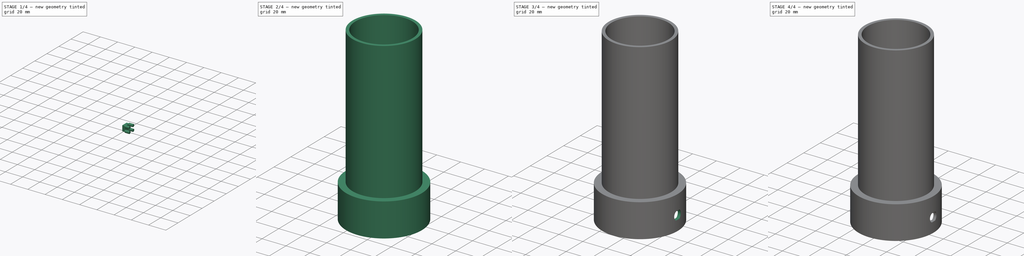
[diagram: build sequence overview — one tinted view per stage of 4, left to right]
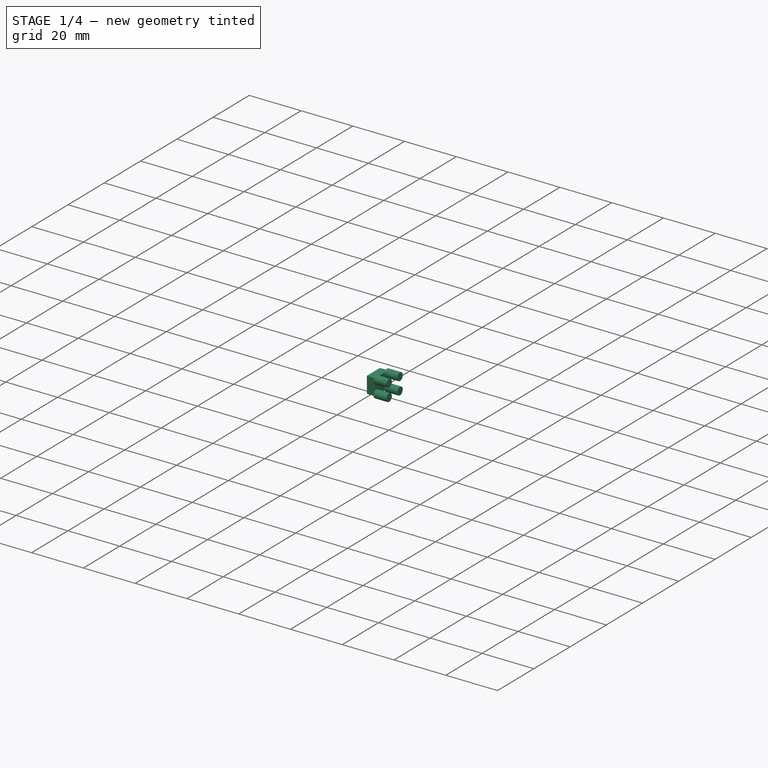
[diagram: stage 1 of 4 — iso view after this stage's code; geometry added in this stage tinted green]
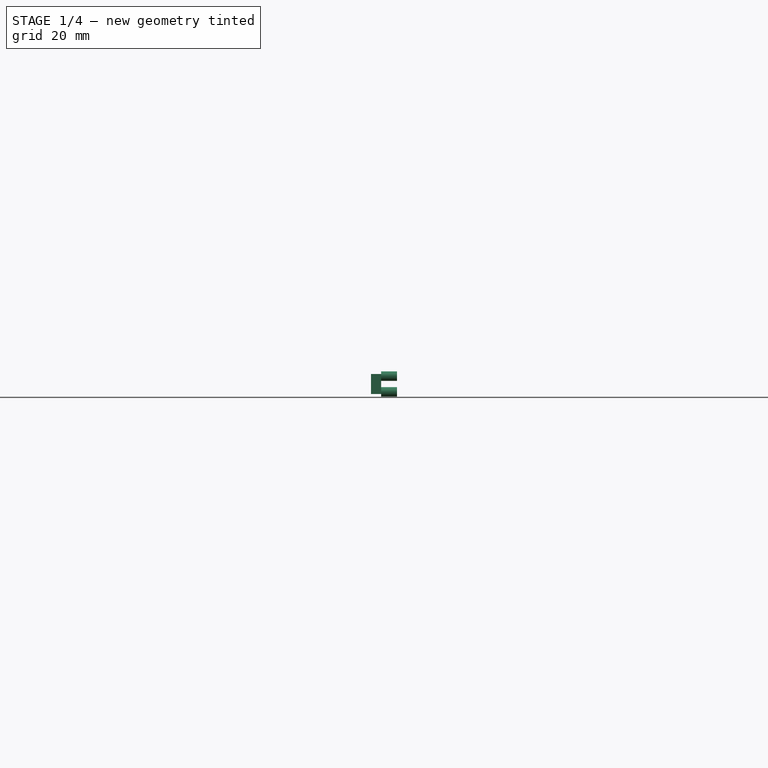
[diagram: stage 1 of 4 — front view after this stage's code; geometry added in this stage tinted green]
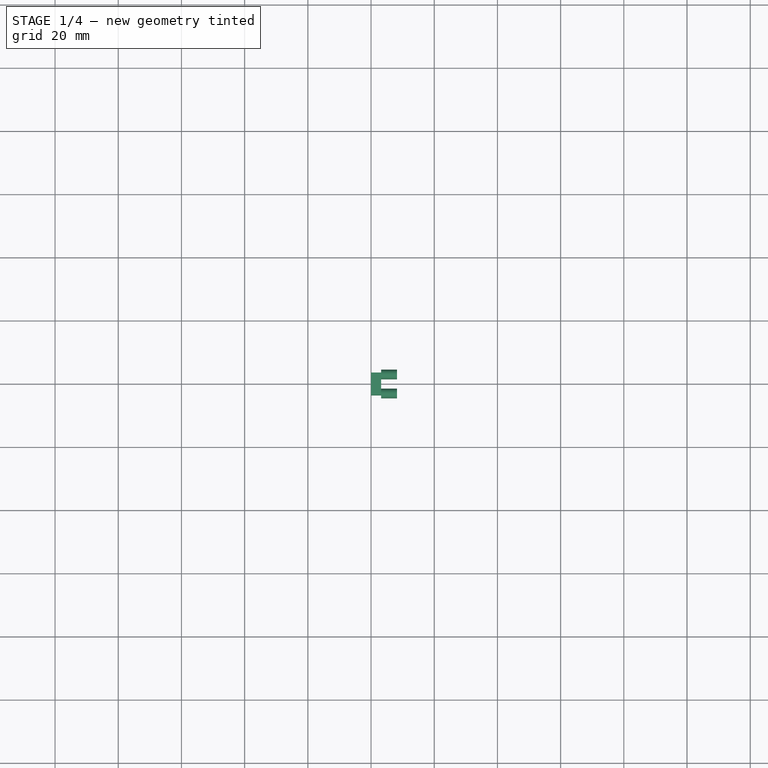
[diagram: stage 1 of 4 — top view after this stage's code; geometry added in this stage tinted green]
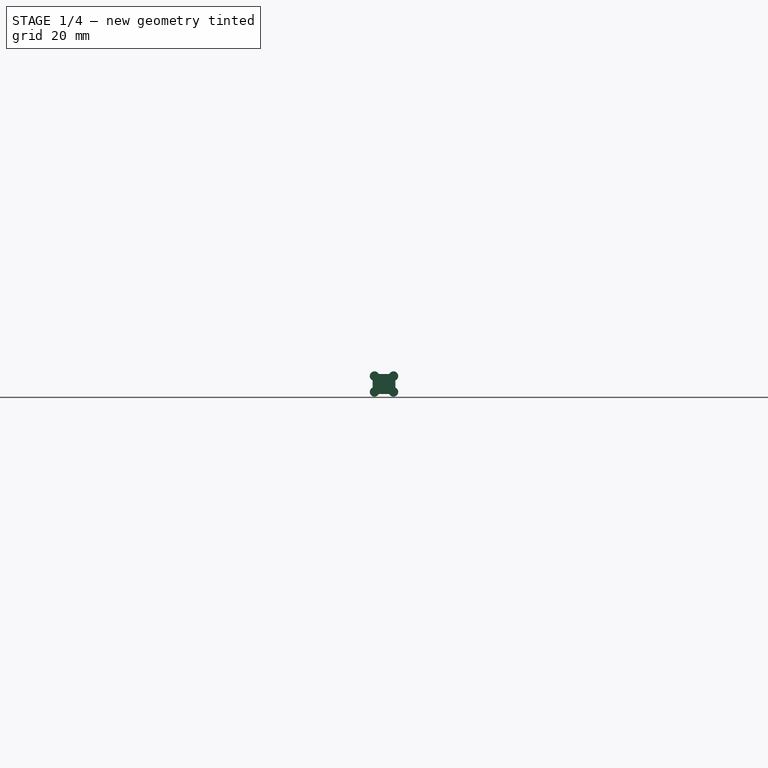
[diagram: stage 1 of 4 — right view after this stage's code; geometry added in this stage tinted green]
FCSTD DOCUMENT  (FreeCAD 1.0R)
Label: GyverLamp2
License: All rights reserved
LicenseURL: https://en.wikipedia.org/wiki/All_rights_reserved
objects: Sketcher::SketchObject×5, PartDesign::Pad×4, PartDesign::Body×4, PartDesign::Boolean×3, PartDesign::Chamfer×2, PartDesign::Revolution×1
note: 41 computed .brp shape members not serialized (recipe doc carries the construction recipe); baked Part::Feature solids carry a one-line shape summary decoded from their .brp

FEATURE [Sketcher::SketchObject] Sketch003
  ArcFitTolerance = 1e-06
  AttachmentSupport = -> [YZ_Plane004]
  FullyConstrained = true
  MakeInternals = false
  MapMode = 5
  Placement = pos=(0,0,0) rot=(0.57735,0.57735,0.57735;2.0944rad)
  sketch-geometry (5):
    g0: LineSegment StartX=-3.6 StartY=-3.15 StartZ=0 EndX=3.6 EndY=-3.15 EndZ=0
    g1: LineSegment StartX=3.6 StartY=-3.15 StartZ=0 EndX=3.6 EndY=3.15 EndZ=0
    g2: LineSegment StartX=3.6 StartY=3.15 StartZ=0 EndX=-3.6 EndY=3.15 EndZ=0
    g3: LineSegment StartX=-3.6 StartY=3.15 StartZ=0 EndX=-3.6 EndY=-3.15 EndZ=0
    g4: GeomPoint [constr] X=0 Y=0 Z=0
  constraints (12):
    c: Coincident(g0,g1)
    c: Coincident(g1,g2)
    c: Coincident(g2,g3)
    c: Coincident(g3,g0)
    c: Horizontal(g0)
    c: Horizontal(g2)
    c: Vertical(g1)
    c: Vertical(g3)
    c: Symmetric(g2,g0,g4)
    c: Coincident(g4,g-1)
    c: DistanceY(g0,g1) = 6.3
    c: DistanceX(g0,g0) = 7.2
FEATURE [PartDesign::Pad] Pad002  label="SW"
  Direction = (1,0,0)
  Length = 3.2
  Length2 = 10
  Placement = pos=(0,0,0) rot=(1,1,1;2.0944rad)
  Profile = -> Sketch003
  ReferenceAxis = -> Sketch003 [N_Axis]
  Refine = true
  Suppressed = false
  Type = 0
FEATURE [Sketcher::SketchObject] Sketch005
  ArcFitTolerance = 1e-06
  AttachmentSupport = -> [Pad002]
  FullyConstrained = true
  MakeInternals = false
  MapMode = 5
  Placement = pos=(3.2,-4e-16,2e-16) rot=(0.57735,0.57735,0.57735;2.0944rad)
  sketch-geometry (9):
    g0: LineSegment [constr] StartX=3 StartY=-2.5 StartZ=0 EndX=3 EndY=2.5 EndZ=0
    g1: LineSegment [constr] StartX=3 StartY=2.5 StartZ=0 EndX=-3 EndY=2.5 EndZ=0
    g2: LineSegment [constr] StartX=-3 StartY=2.5 StartZ=0 EndX=-3 EndY=-2.5 EndZ=0
    g3: LineSegment [constr] StartX=-3 StartY=-2.5 StartZ=0 EndX=3 EndY=-2.5 EndZ=0
    g4: GeomPoint [constr] X=0 Y=0 Z=0
    g5: Circle CenterX=-3 CenterY=2.5 CenterZ=0 NormalX=0 NormalY=0 NormalZ=1 AngleXU=0 Radius=1.5
    g6: Circle CenterX=3 CenterY=2.5 CenterZ=0 NormalX=0 NormalY=0 NormalZ=1 AngleXU=0 Radius=1.5
    g7: Circle CenterX=3 CenterY=-2.5 CenterZ=0 NormalX=0 NormalY=0 NormalZ=1 AngleXU=0 Radius=1.5
    g8: Circle CenterX=-3 CenterY=-2.5 CenterZ=0 NormalX=0 NormalY=0 NormalZ=1 AngleXU=0 Radius=1.5
  constraints (20):
    c: Coincident(g0,g1)
    c: Coincident(g1,g2)
    c: Coincident(g2,g3)
    c: Coincident(g3,g0)
    c: Vertical(g0)
    c: Vertical(g2)
    c: Horizontal(g1)
    c: Horizontal(g3)
    c: Symmetric(g2,g0,g4)
    c: Coincident(g4,g-1)
    c: Distance(g0,g2) = 6
    c: DistanceY(g2,g1) = 5
    c: Diameter(g5) = 3
    c: Coincident(g5,g1)
    c: Coincident(g6,g0)
    c: Coincident(g7,g0)
    c: Coincident(g8,g2)
    c: Equal(g8,g7)
    c: Equal(g7,g6)
    c: Equal(g6,g5)
FEATURE [PartDesign::Pad] Pad003  label="SW Wire"
  BaseFeature = -> Pad002
  Direction = (1,0,0)
  Length = 5
  Length2 = 10
  Placement = pos=(0,0,0) rot=(1,1,1;2.0944rad)
  Profile = -> Sketch005
  ReferenceAxis = -> Sketch005 [N_Axis]
  Refine = true
  Suppressed = false
  Type = 0
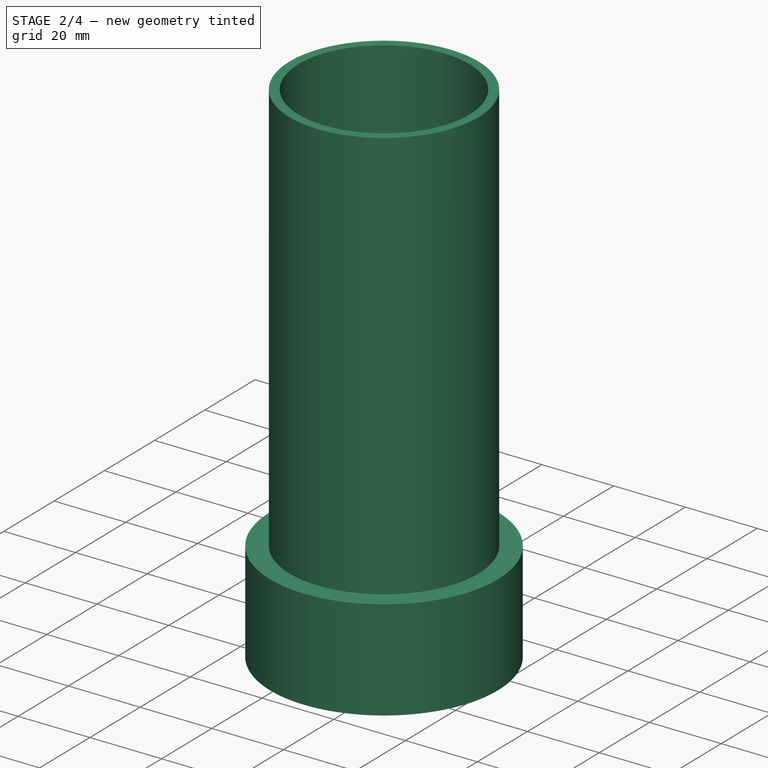
[diagram: stage 2 of 4 — iso view after this stage's code; geometry added in this stage tinted green]
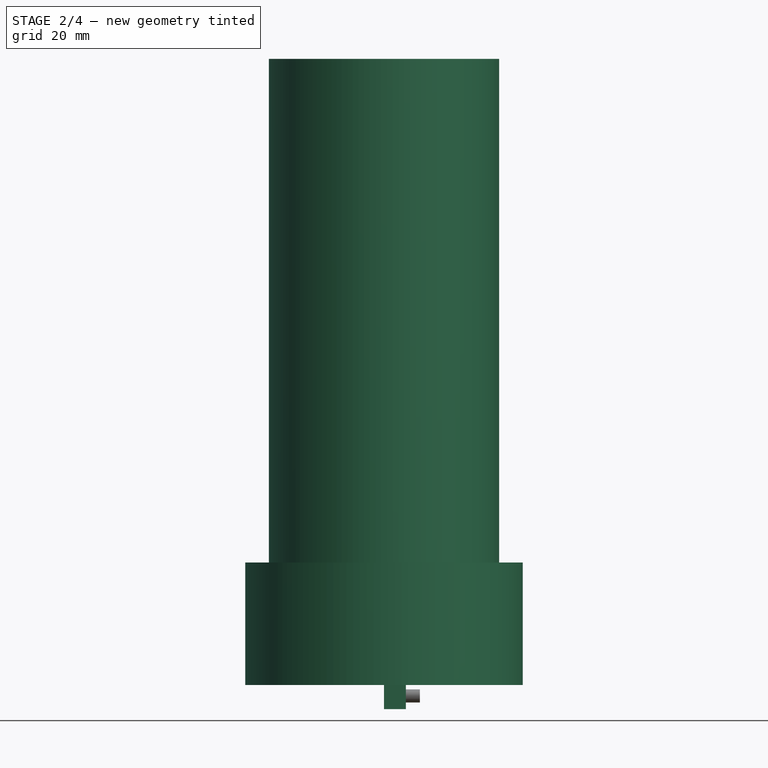
[diagram: stage 2 of 4 — front view after this stage's code; geometry added in this stage tinted green]
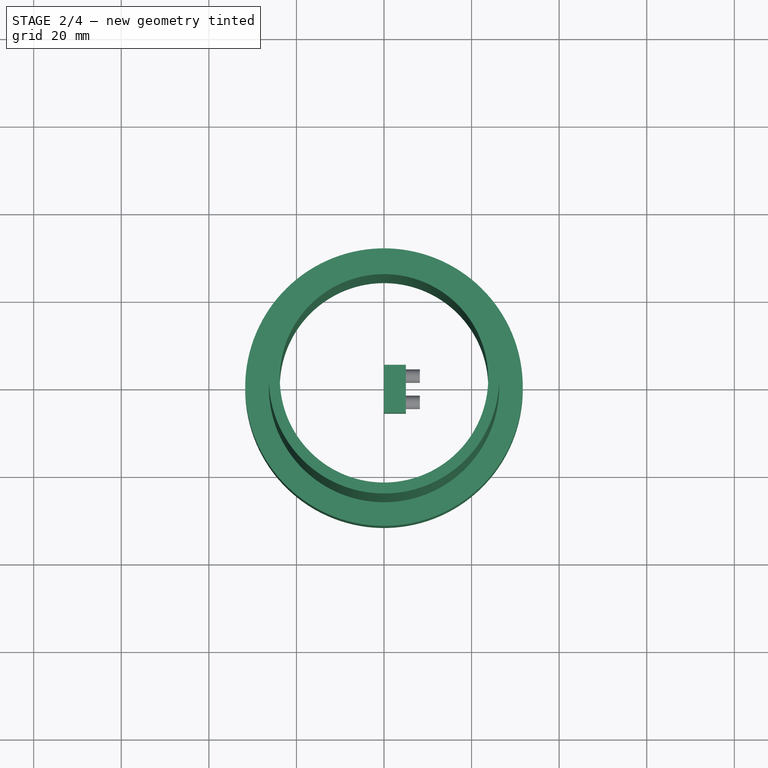
[diagram: stage 2 of 4 — top view after this stage's code; geometry added in this stage tinted green]
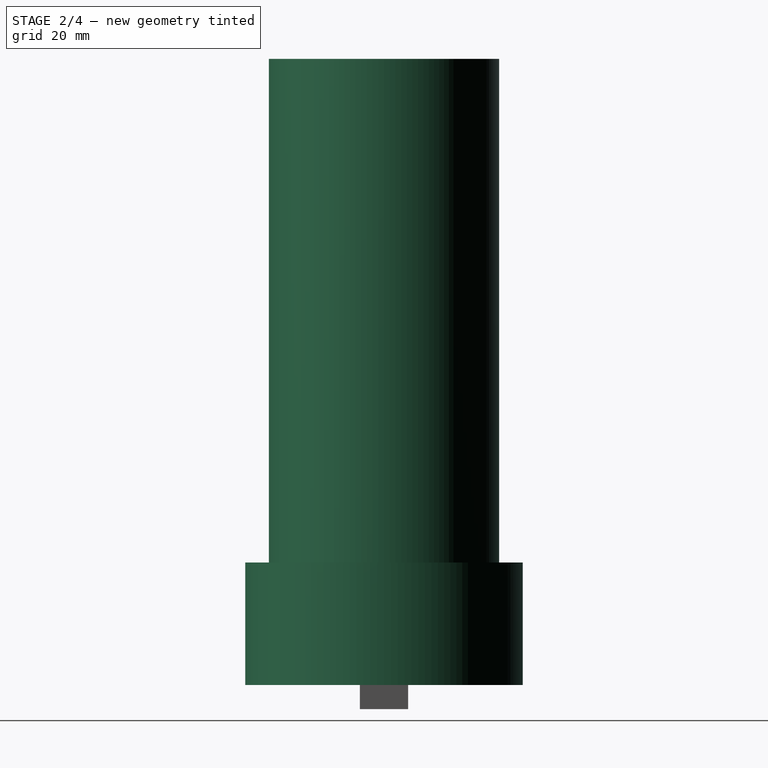
[diagram: stage 2 of 4 — right view after this stage's code; geometry added in this stage tinted green]
FEATURE [Sketcher::SketchObject] Sketch
  ArcFitTolerance = 1e-06
  AttachmentSupport = -> [XZ_Plane]
  FullyConstrained = true
  MakeInternals = false
  MapMode = 5
  Placement = pos=(0,0,0) rot=(1,0,0;1.5708rad)
  sketch-geometry (8):
    g0: LineSegment StartX=-31.7 StartY=0 StartZ=0 EndX=-31.7 EndY=28 EndZ=0
    g1: LineSegment StartX=-31.7 StartY=28 StartZ=0 EndX=-26.3 EndY=28 EndZ=0
    g2: LineSegment StartX=-26.3 StartY=28 StartZ=0 EndX=-26.3 EndY=143 EndZ=0
    g3: LineSegment StartX=-26.3 StartY=143 StartZ=0 EndX=-23.8 EndY=143 EndZ=0
    g4: LineSegment StartX=-23.8 StartY=143 StartZ=0 EndX=-23.8 EndY=25 EndZ=0
    g5: LineSegment StartX=-23.8 StartY=25 StartZ=0 EndX=-29.2 EndY=25 EndZ=0
    g6: LineSegment StartX=-29.2 StartY=25 StartZ=0 EndX=-29.2 EndY=0 EndZ=0
    g7: LineSegment StartX=-29.2 StartY=0 StartZ=0 EndX=-31.7 EndY=0 EndZ=0
  constraints (24):
    c: PointOnObject(g0,g-1)
    c: Vertical(g0)
    c: Coincident(g0,g1)
    c: Horizontal(g1)
    c: Coincident(g1,g2)
    c: Vertical(g2)
    c: Coincident(g2,g3)
    c: Horizontal(g3)
    c: Coincident(g3,g4)
    c: Vertical(g4)
    c: Coincident(g4,g5)
    c: Horizontal(g5)
    c: Coincident(g5,g6)
    c: Vertical(g6)
    c: Coincident(g6,g7)
    c: Coincident(g7,g0)
    c: Horizontal(g7)
    c: Distance(g-2,g6) = 29.2
    c: Distance(g-2,g2) = 26.3
    c: Distance(g3,g3) = 2.5
    c: Distance(g6,g0) = 2.5
    c: Distance(g5,g1) = 3
    c: Distance(g2,g2) = 115
    c: Distance(g-1,g5) = 25
FEATURE [PartDesign::Revolution] Revolution
  Angle = 360
  Angle2 = 60
  Axis = (0,2e-16,1)
  Base = (0,0,0)
  Placement = pos=(0,0,0) rot=(1,0,0;1.5708rad)
  Profile = -> Sketch
  ReferenceAxis = -> Sketch [V_Axis]
  Refine = true
  Suppressed = false
  Type = 0
FEATURE [Sketcher::SketchObject] Sketch001
  ArcFitTolerance = 1e-06
  AttachmentSupport = -> [YZ_Plane001]
  FullyConstrained = true
  MakeInternals = false
  MapMode = 5
  Placement = pos=(0,0,0) rot=(0.57735,0.57735,0.57735;2.0944rad)
  sketch-geometry (9):
    g0: Circle [constr] CenterX=0 CenterY=0 CenterZ=0 NormalX=0 NormalY=0 NormalZ=1 AngleXU=0 Radius=3.95
    g1: LineSegment [constr] StartX=-1.92354 StartY=3.45 StartZ=0 EndX=-1.92354 EndY=-3.45 EndZ=0
    g2: LineSegment [constr] StartX=-1.92354 StartY=-3.45 StartZ=0 EndX=1.92354 EndY=-3.45 EndZ=0
    g3: LineSegment [constr] StartX=1.92354 StartY=-3.45 StartZ=0 EndX=1.92354 EndY=3.45 EndZ=0
    g4: LineSegment [constr] StartX=1.92354 StartY=3.45 StartZ=0 EndX=-1.92354 EndY=3.45 EndZ=0
    g5: ArcOfCircle CenterX=0 CenterY=0 CenterZ=0 NormalX=0 NormalY=0 NormalZ=1 AngleXU=0 Radius=3.95 StartAngle=2.07942 EndAngle=4.20377
    g6: ArcOfCircle CenterX=0 CenterY=-3e-16 CenterZ=0 NormalX=0 NormalY=0 NormalZ=1 AngleXU=0 Radius=3.95 StartAngle=5.22101 EndAngle=7.34536
    g7: LineSegment StartX=-1.92354 StartY=3.45 StartZ=0 EndX=1.92354 EndY=3.45 EndZ=0
    g8: LineSegment StartX=-1.92354 StartY=-3.45 StartZ=0 EndX=1.92354 EndY=-3.45 EndZ=0
  constraints (23):
    c: Coincident(g0,g-1)
    c: Coincident(g1,g2)
    c: Coincident(g2,g3)
    c: Coincident(g3,g4)
    c: Coincident(g4,g1)
    c: Vertical(g1)
    c: Vertical(g3)
    c: Horizontal(g2)
    c: Horizontal(g4)
    c: PointOnObject(g1,g0)
    c: PointOnObject(g2,g0)
    c: Coincident(g5,g0)
    c: Coincident(g7,g1)
    c: Coincident(g7,g6)
    c: Coincident(g8,g5)
    c: Coincident(g8,g6)
    c: Coincident(g1,g5)
    c: Coincident(g3,g6)
    c: Coincident(g2,g6)
    c: Coincident(g1,g5)
    c: DistanceY(g1,g1) = 6.9
    c: PointOnObject(g6,g-2)
    c: Radius(g5) = 3.95
FEATURE [PartDesign::Pad] Pad
  Direction = (1,0,0)
  Length = 4
  Length2 = 10
  Placement = pos=(0,0,0) rot=(1,1,1;2.0944rad)
  Profile = -> Sketch001
  ReferenceAxis = -> Sketch001 [N_Axis]
  Refine = true
  Suppressed = false
  Type = 0
FEATURE [Sketcher::SketchObject] Sketch002
  ArcFitTolerance = 1e-06
  AttachmentSupport = -> [YZ_Plane003]
  FullyConstrained = true
  MakeInternals = false
  MapMode = 5
  Placement = pos=(0,0,0) rot=(0.57735,0.57735,0.57735;2.0944rad)
  sketch-geometry (5):
    g0: LineSegment StartX=-5.5 StartY=5.5 StartZ=0 EndX=-5.5 EndY=-5.5 EndZ=0
    g1: LineSegment StartX=-5.5 StartY=-5.5 StartZ=0 EndX=5.5 EndY=-5.5 EndZ=0
    g2: LineSegment StartX=5.5 StartY=-5.5 StartZ=0 EndX=5.5 EndY=5.5 EndZ=0
    g3: LineSegment StartX=5.5 StartY=5.5 StartZ=0 EndX=-5.5 EndY=5.5 EndZ=0
    g4: GeomPoint [constr] X=0 Y=0 Z=0
  constraints (12):
    c: Coincident(g0,g1)
    c: Coincident(g1,g2)
    c: Coincident(g2,g3)
    c: Coincident(g3,g0)
    c: Vertical(g0)
    c: Vertical(g2)
    c: Horizontal(g1)
    c: Horizontal(g3)
    c: Symmetric(g2,g0,g4)
    c: Coincident(g4,g-1)
    c: Equal(g3,g0)
    c: DistanceX(g0,g1) = 11
FEATURE [PartDesign::Pad] Pad001  label="SW Base1"
  Direction = (1,0,0)
  Length = 5
  Length2 = 10
  Placement = pos=(0,0,0) rot=(1,1,1;2.0944rad)
  Profile = -> Sketch002
  ReferenceAxis = -> Sketch002 [N_Axis]
  Refine = true
  Suppressed = false
  Type = 0
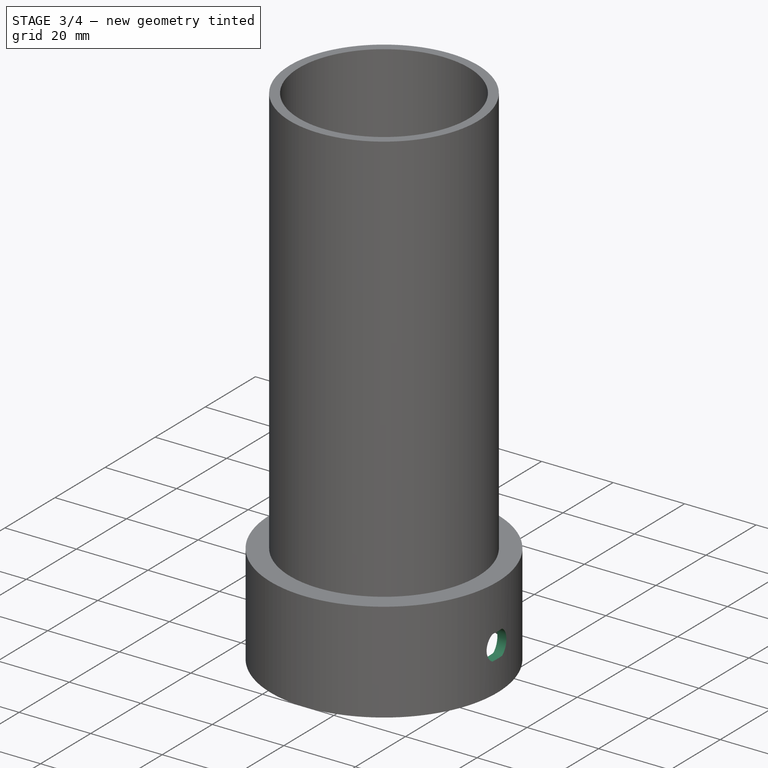
[diagram: stage 3 of 4 — iso view after this stage's code; geometry added in this stage tinted green]
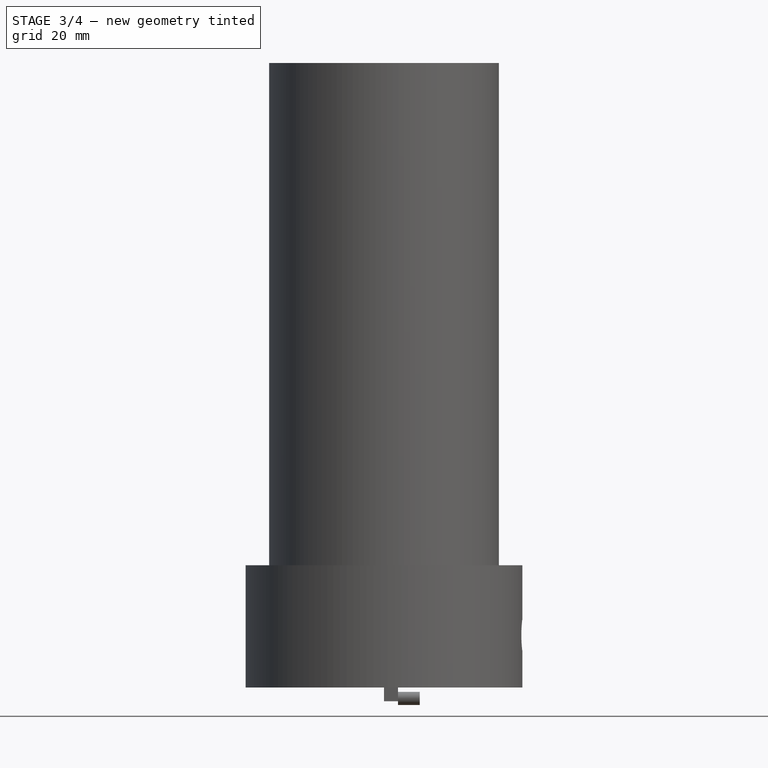
[diagram: stage 3 of 4 — front view after this stage's code; geometry added in this stage tinted green]
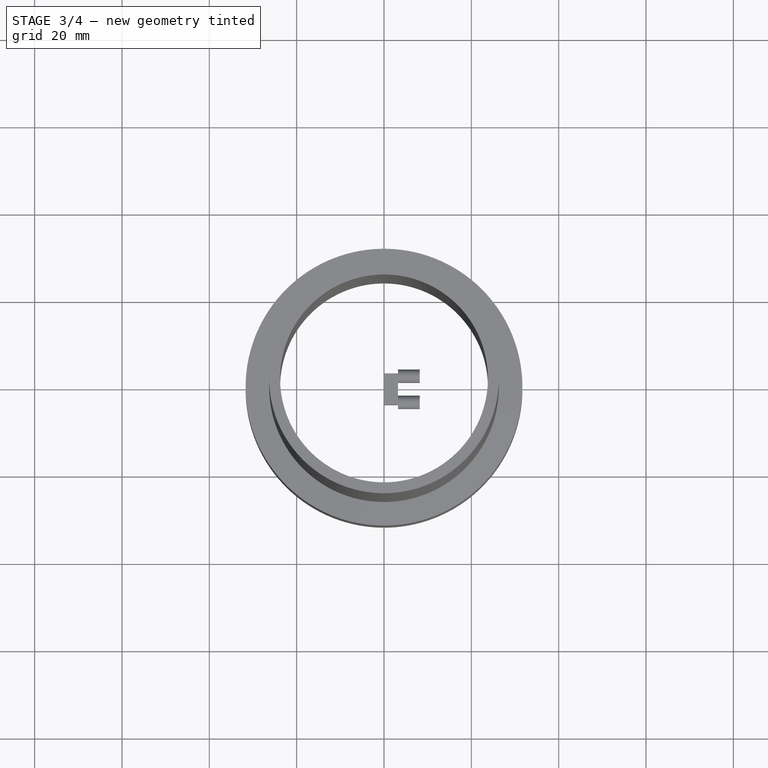
[diagram: stage 3 of 4 — top view after this stage's code; geometry added in this stage tinted green]
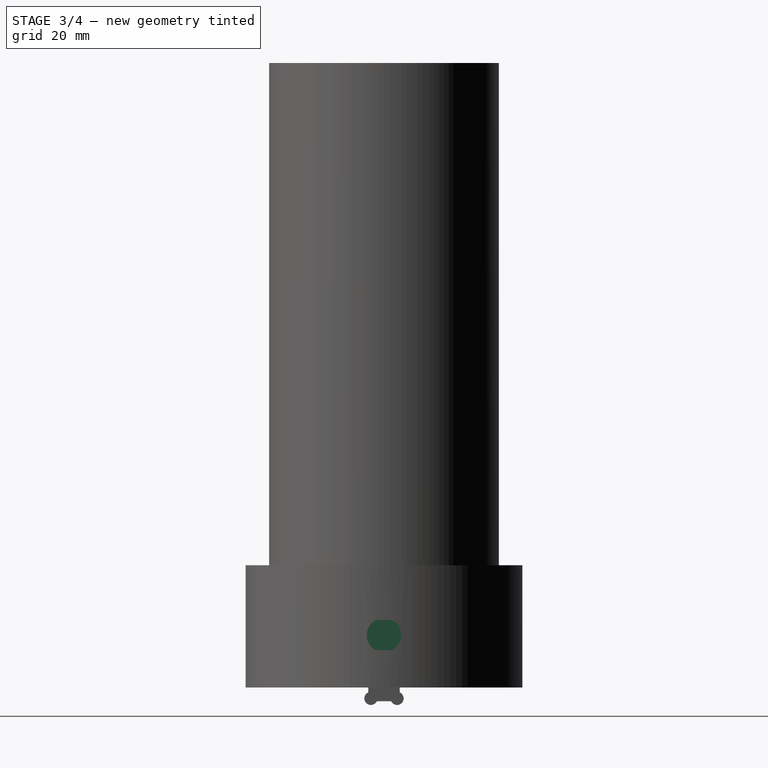
[diagram: stage 3 of 4 — right view after this stage's code; geometry added in this stage tinted green]
FEATURE [PartDesign::Body] Body001  label="Plug"
  AllowCompound = false
  Group = -> [Sketch001,Pad]
  Origin = -> Origin001
  Placement = pos=(28,0,12) rot=(0,0,1;0rad)
  Tip = -> Pad
FEATURE [PartDesign::Boolean] Boolean
  BaseFeature = -> Revolution
  Group = -> [Body001]
  Refine = true
  Suppressed = false
  Type = 1
  UsePlacement = true
FEATURE [PartDesign::Body] Body002  label="SW Base"
  AllowCompound = false
  Group = -> [Sketch002,Pad001]
  Origin = -> Origin003
  Placement = pos=(-29.3,0,12.5) rot=(0,0,1;0rad)
  Tip = -> Pad001
FEATURE [PartDesign::Boolean] Boolean001
  BaseFeature = -> Boolean
  Group = -> [Body002]
  Refine = true
  Suppressed = false
  Type = 0
  UsePlacement = true
FEATURE [PartDesign::Chamfer] Chamfer
  Angle = 45
  Base = -> Boolean001 [Edge28,Edge26]
  BaseFeature = -> Boolean001
  ChamferType = 0
  FlipDirection = false
  Refine = true
  Size = 4.2
  Size2 = 1
  SupportTransform = false
  Suppressed = false
  UseAllEdges = false
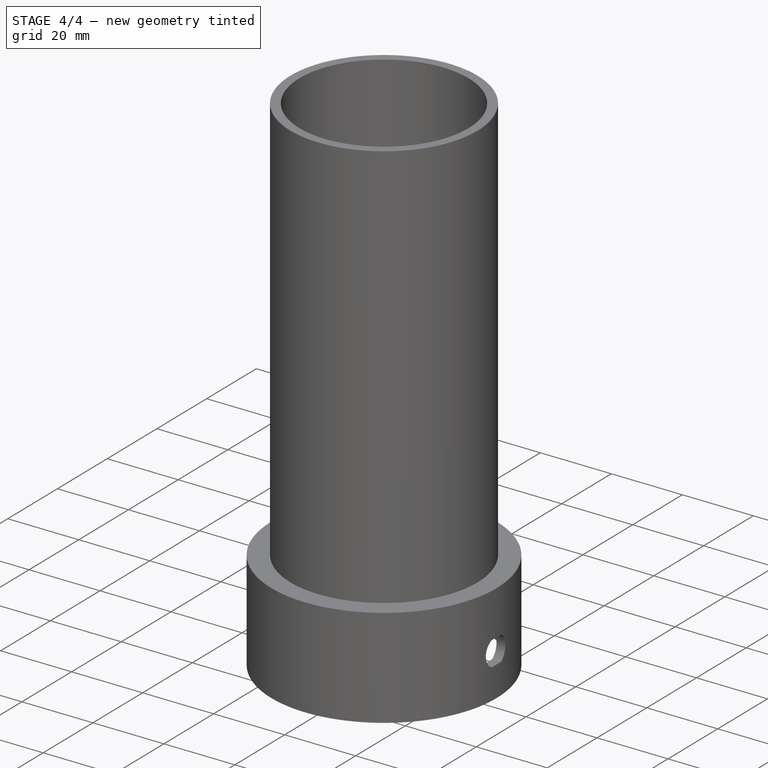
[diagram: stage 4 of 4 — iso view after this stage's code; geometry added in this stage tinted green]
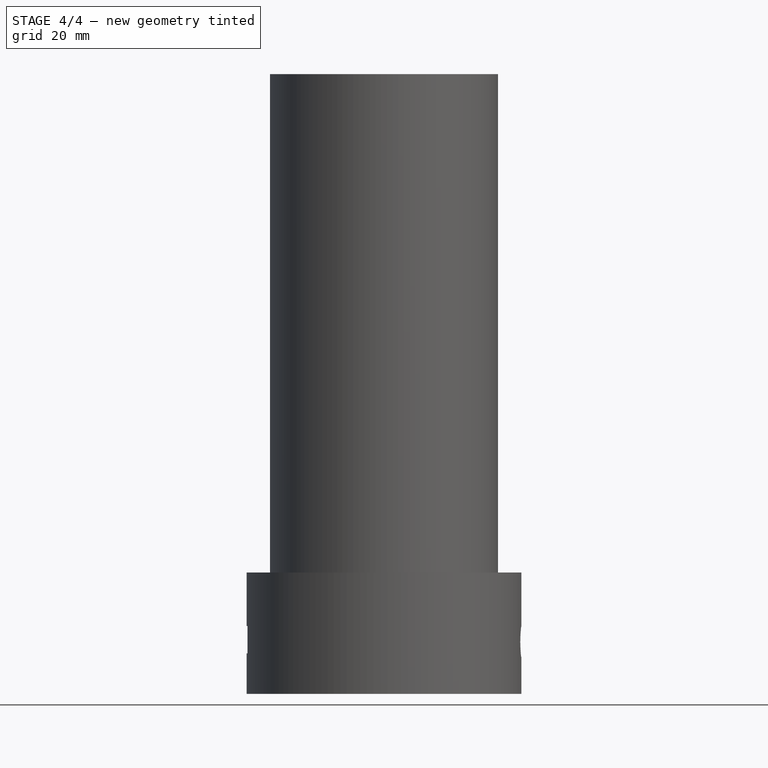
[diagram: stage 4 of 4 — front view after this stage's code; geometry added in this stage tinted green]
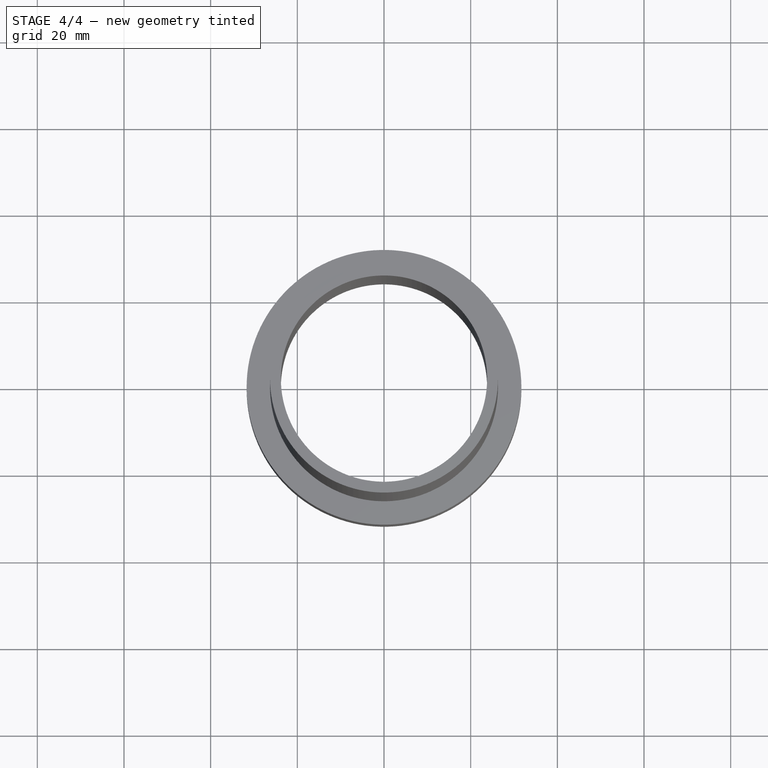
[diagram: stage 4 of 4 — top view after this stage's code; geometry added in this stage tinted green]
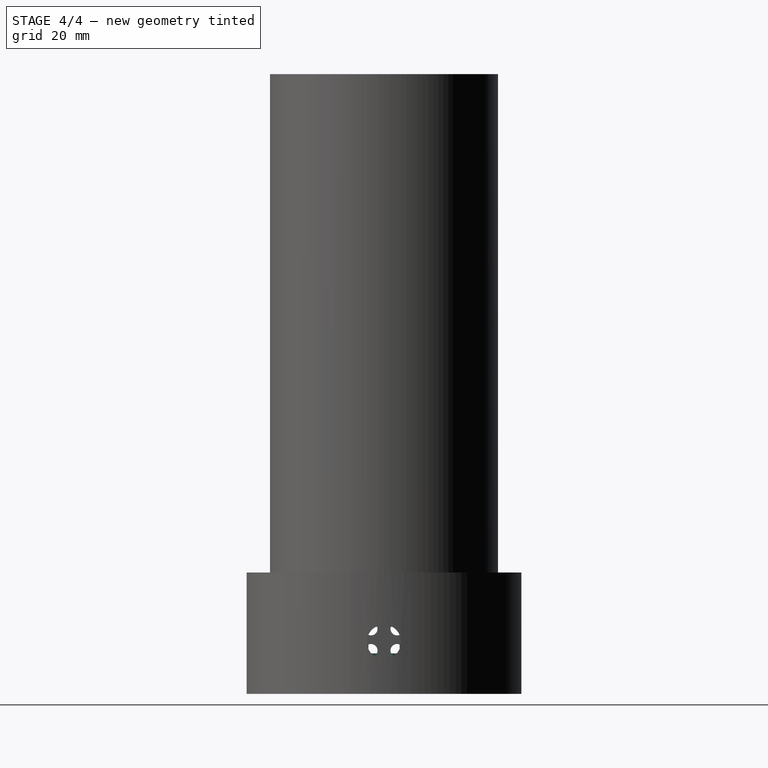
[diagram: stage 4 of 4 — right view after this stage's code; geometry added in this stage tinted green]
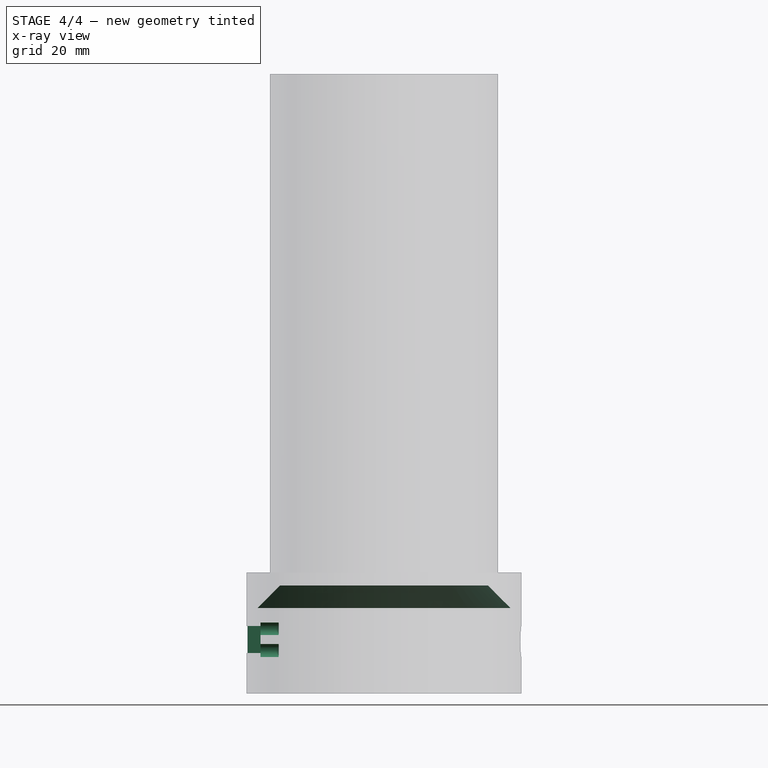
[diagram: stage 4 of 4 — x-ray composite at the front view; earlier geometry ghosted, this stage's added geometry solid]
FEATURE [PartDesign::Chamfer] Chamfer001
  Angle = 45
  Base = -> Chamfer [Edge11]
  BaseFeature = -> Chamfer
  ChamferType = 0
  FlipDirection = false
  Refine = true
  Size = 5.2
  Size2 = 1
  SupportTransform = false
  Suppressed = false
  UseAllEdges = false
FEATURE [PartDesign::Body] Body003  label="SW Cutout"
  AllowCompound = true
  Group = -> [Sketch003,Pad002,Sketch005,Pad003]
  Origin = -> Origin004
  Placement = pos=(-31.7,0,12.5) rot=(0,0,1;0rad)
  Tip = -> Pad003
FEATURE [PartDesign::Boolean] Boolean002
  BaseFeature = -> Chamfer001
  Group = -> [Body003]
  Refine = true
  Suppressed = false
  Type = 1
  UsePlacement = true
FEATURE [PartDesign::Body] Body
  AllowCompound = false
  Group = -> [Sketch,Revolution,Boolean,Boolean001,Chamfer,Chamfer001,Boolean002]
  Origin = -> Origin
  Tip = -> Boolean002
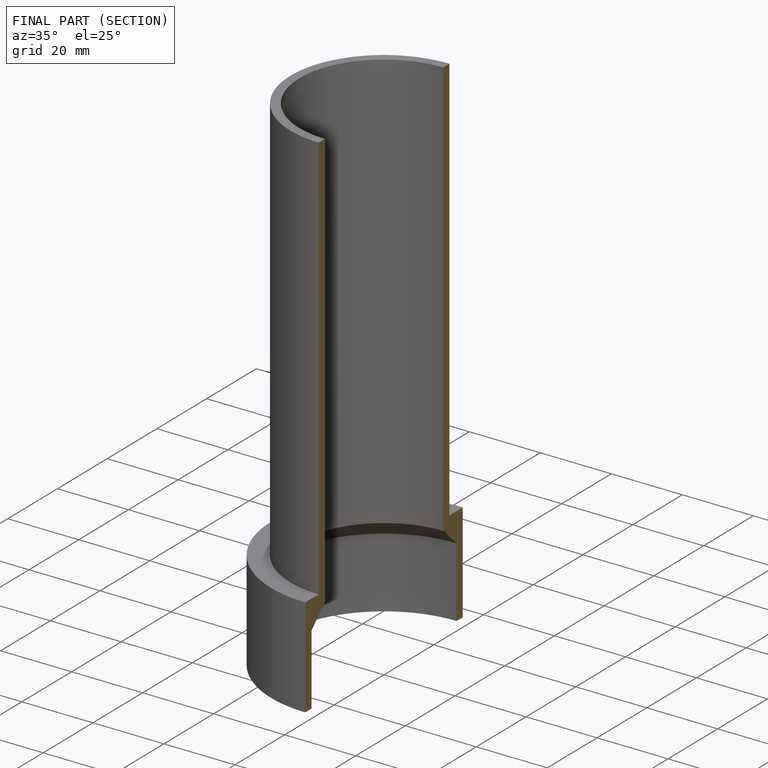
[diagram: finished part — half-section view (interior)]
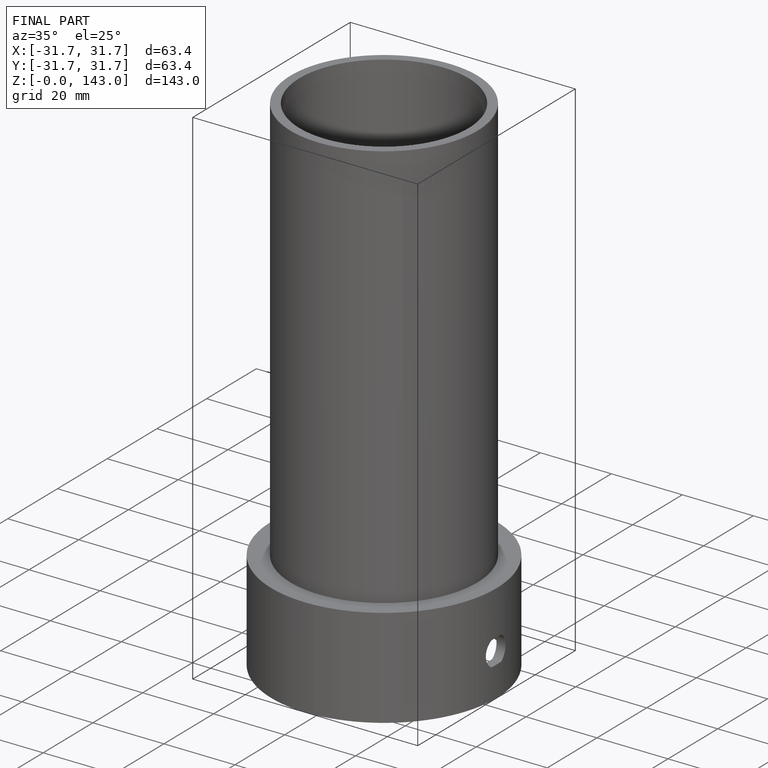
[diagram: finished part — iso view with bounding-box wireframe]
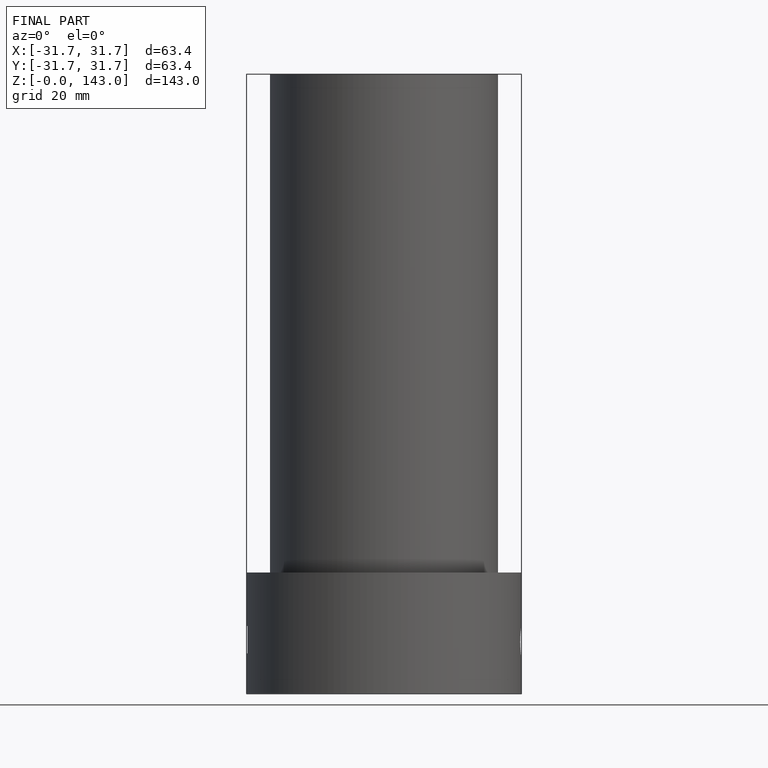
[diagram: finished part — front view with bounding-box wireframe]
